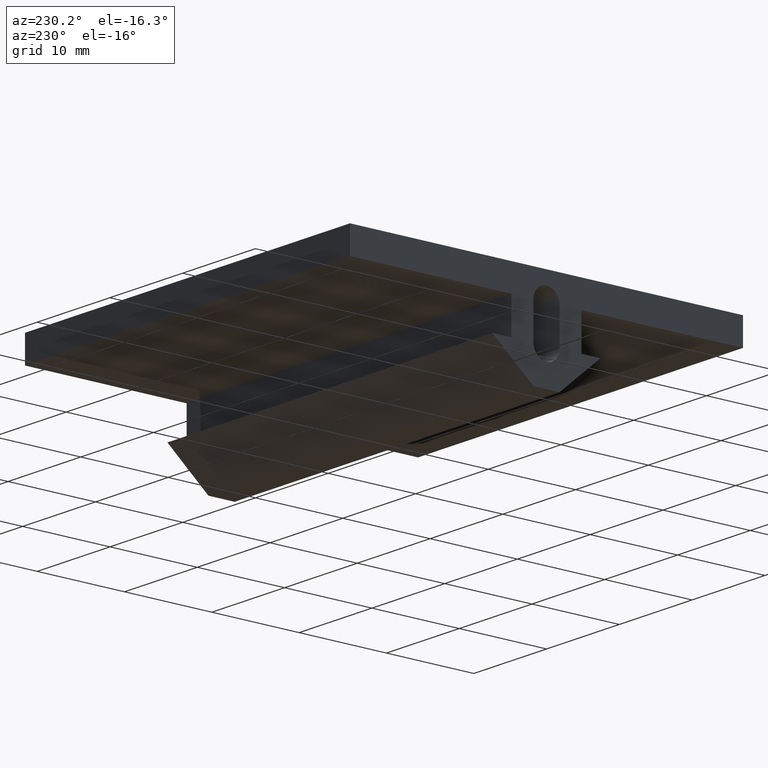
[diagram: clean part render]
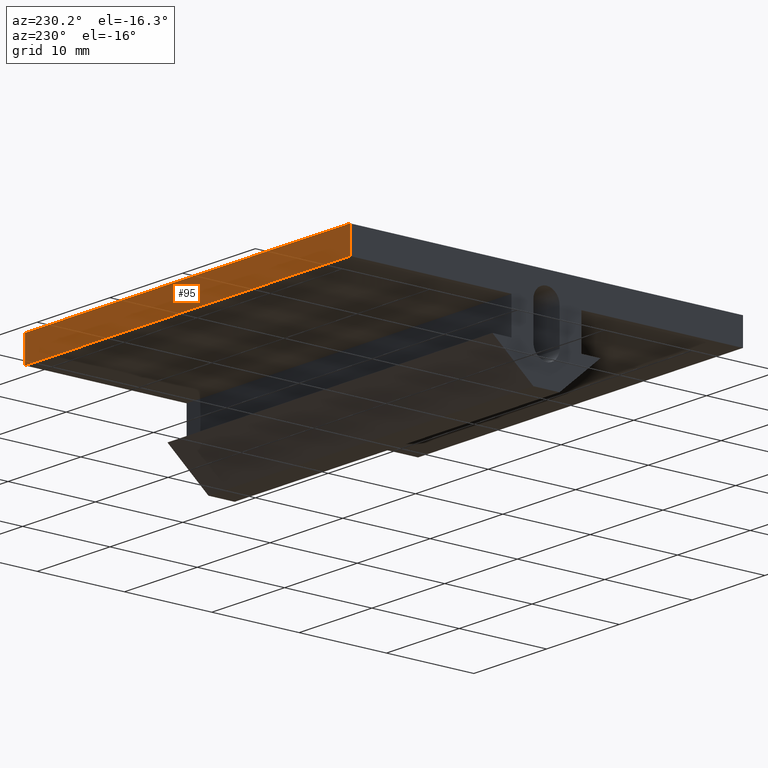
[diagram: same view with one face highlighted and labeled with its STEP entity id]
A machine part, auxiliary view. The second image highlights one B-rep face of the part: STEP entity #95.
In plain terms, the highlighted planar face has unit normal (0, -1, 0).
Its self-contained STEP definition (entity closure, byte-faithful):
#66 = VERTEX_POINT ( 'NONE', #428 ) ;
#88 = EDGE_LOOP ( 'NONE', ( #305, #233, #237, #115 ) ) ;
#95 = ADVANCED_FACE ( 'NONE', ( #394 ), #390, .F. ) ;
#115 = ORIENTED_EDGE ( 'NONE', *, *, #263, .T. ) ;
#232 = VERTEX_POINT ( 'NONE', #341 ) ;
#233 = ORIENTED_EDGE ( 'NONE', *, *, #265, .F. ) ;
#234 = VERTEX_POINT ( 'NONE', #340 ) ;
#235 = EDGE_CURVE ( 'NONE', #66, #232, #339, .T. ) ;
#236 = VERTEX_POINT ( 'NONE', #490 ) ;
#237 = ORIENTED_EDGE ( 'NONE', *, *, #238, .F. ) ;
#238 = EDGE_CURVE ( 'NONE', #236, #234, #489, .T. ) ;
#263 = EDGE_CURVE ( 'NONE', #236, #66, #557, .T. ) ;
#265 = EDGE_CURVE ( 'NONE', #234, #232, #674, .T. ) ;
#305 = ORIENTED_EDGE ( 'NONE', *, *, #235, .T. ) ;
#337 = VECTOR ( 'NONE', #491, 1000.000000000000000 ) ;
#338 = CARTESIAN_POINT ( 'NONE',  ( 0.0000000000000000000, 22.50000000000000000, 5.510728592200697700E-015 ) ) ;
#339 = LINE ( 'NONE', #338, #337 ) ;
#340 = CARTESIAN_POINT ( 'NONE',  ( 44.66704193895279200, 22.50000000000000000, 5.510728592200697700E-015 ) ) ;
#341 = CARTESIAN_POINT ( 'NONE',  ( 0.0000000000000000000, 22.50000000000000000, 5.510728592200697700E-015 ) ) ;
#390 = PLANE ( 'NONE',  #393 ) ;
#392 = CARTESIAN_POINT ( 'NONE',  ( 44.66704193895279200, 22.50000000000000000, 5.510728592200697700E-015 ) ) ;
#393 = AXIS2_PLACEMENT_3D ( 'NONE', #392, #531, #530 ) ;
#394 = FACE_OUTER_BOUND ( 'NONE', #88, .T. ) ;
#428 = CARTESIAN_POINT ( 'NONE',  ( 0.0000000000000000000, 22.50000000000000000, -2.999999999999994200 ) ) ;
#486 = DIRECTION ( 'NONE',  ( -0.0000000000000000000, -0.0000000000000000000, 1.000000000000000000 ) ) ;
#487 = VECTOR ( 'NONE', #486, 1000.000000000000000 ) ;
#488 = CARTESIAN_POINT ( 'NONE',  ( 44.66704193895279200, 22.50000000000000000, 5.510728592200697700E-015 ) ) ;
#489 = LINE ( 'NONE', #488, #487 ) ;
#490 = CARTESIAN_POINT ( 'NONE',  ( 44.66704193895279200, 22.50000000000000000, -2.999999999999994200 ) ) ;
#491 = DIRECTION ( 'NONE',  ( -0.0000000000000000000, -0.0000000000000000000, 1.000000000000000000 ) ) ;
#530 = DIRECTION ( 'NONE',  ( 0.0000000000000000000, -0.0000000000000000000, -1.000000000000000000 ) ) ;
#531 = DIRECTION ( 'NONE',  ( 0.0000000000000000000, -1.000000000000000000, 0.0000000000000000000 ) ) ;
#554 = DIRECTION ( 'NONE',  ( -1.000000000000000000, -0.0000000000000000000, -0.0000000000000000000 ) ) ;
#555 = VECTOR ( 'NONE', #554, 1000.000000000000000 ) ;
#556 = CARTESIAN_POINT ( 'NONE',  ( 44.66704193895279200, 22.50000000000000000, -2.999999999999994200 ) ) ;
#557 = LINE ( 'NONE', #556, #555 ) ;
#669 = DIRECTION ( 'NONE',  ( -1.000000000000000000, -0.0000000000000000000, -0.0000000000000000000 ) ) ;
#670 = VECTOR ( 'NONE', #669, 1000.000000000000000 ) ;
#671 = CARTESIAN_POINT ( 'NONE',  ( 44.66704193895279200, 22.50000000000000000, 5.510728592200697700E-015 ) ) ;
#674 = LINE ( 'NONE', #671, #670 ) ;